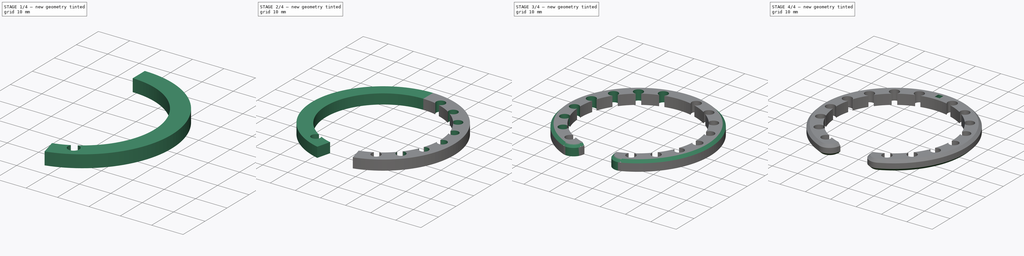
[diagram: build sequence overview — one tinted view per stage of 4, left to right]
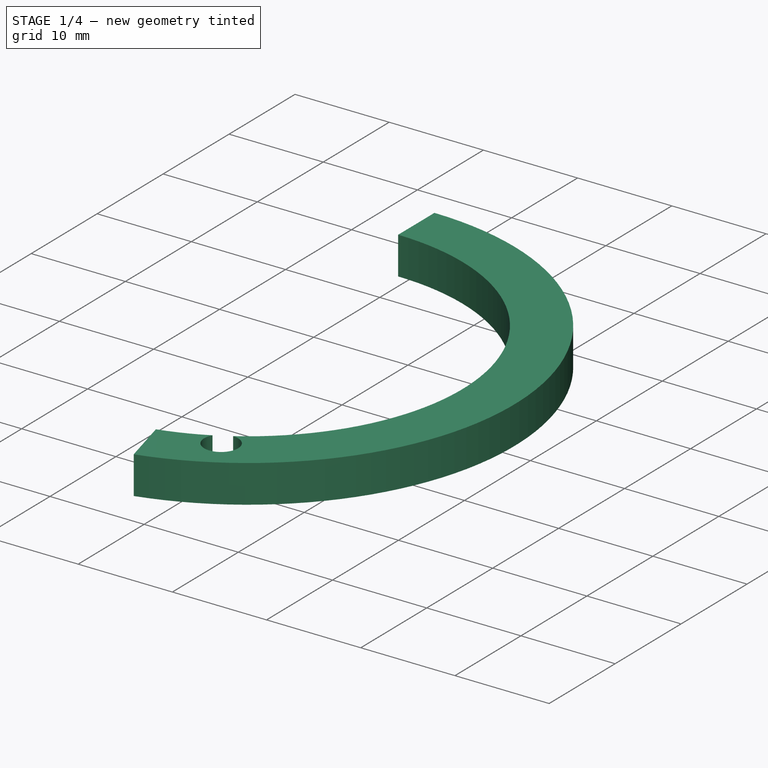
[diagram: stage 1 of 4 — iso view after this stage's code; geometry added in this stage tinted green]
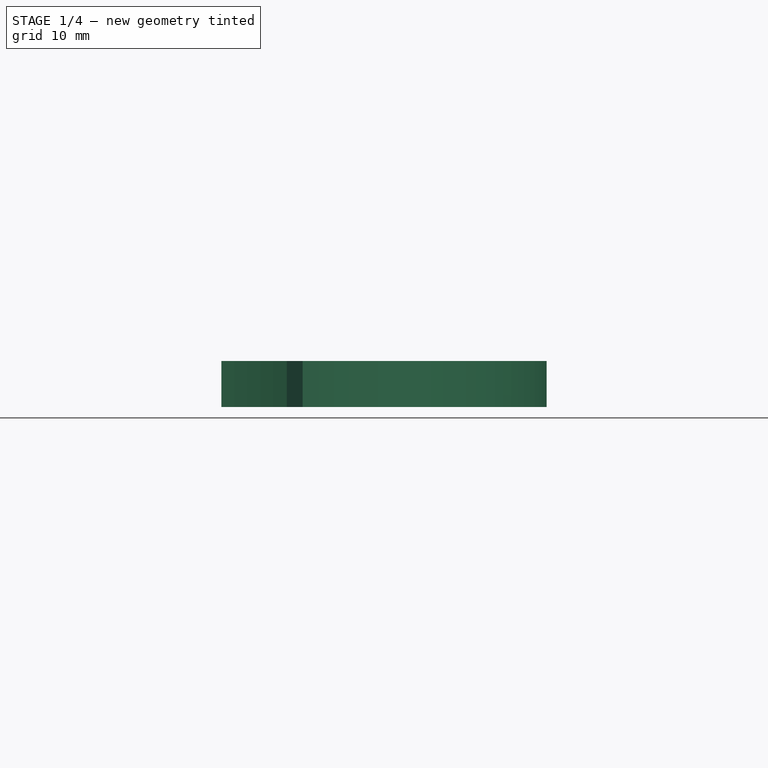
[diagram: stage 1 of 4 — front view after this stage's code; geometry added in this stage tinted green]
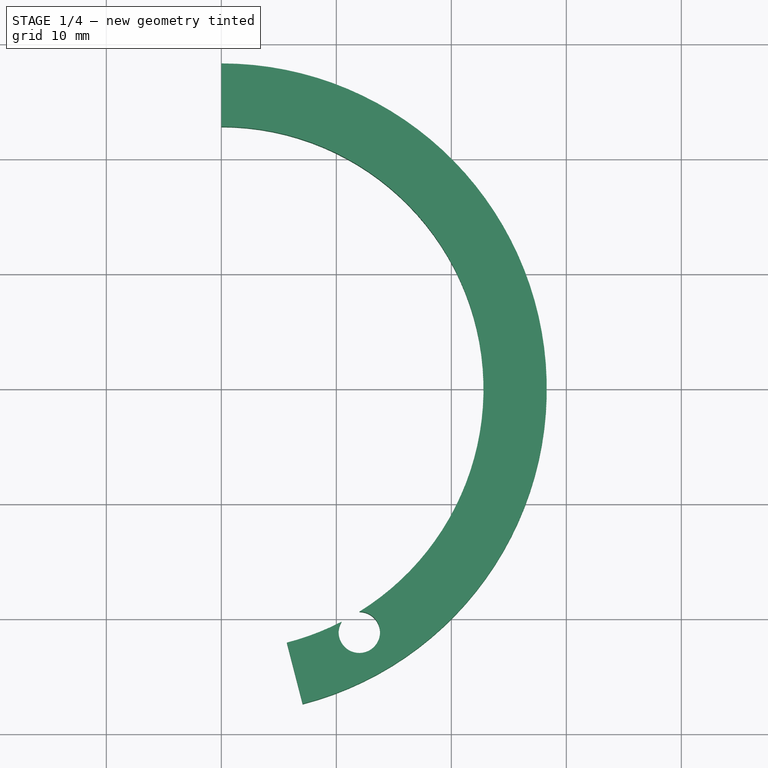
[diagram: stage 1 of 4 — top view after this stage's code; geometry added in this stage tinted green]
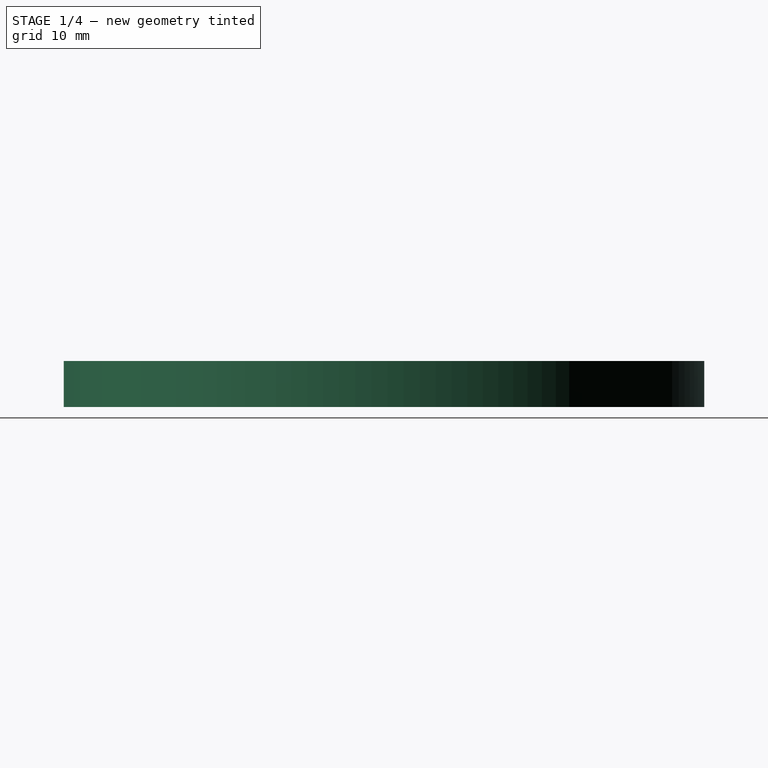
[diagram: stage 1 of 4 — right view after this stage's code; geometry added in this stage tinted green]
FCSTD DOCUMENT  (FreeCAD 0.17R13541 (Git))
Label: BigClip1
License: All rights reserved
LicenseURL: http://en.wikipedia.org/wiki/All_rights_reserved
objects: Sketcher::SketchObject×4, PartDesign::Pocket×3, PartDesign::PolarPattern×2, PartDesign::MultiTransform×2, PartDesign::Chamfer×2, Spreadsheet::Sheet×1, PartDesign::Pad×1, PartDesign::Mirrored×1, PartDesign::Fillet×1, PartDesign::Body×1
note: 21 computed .brp shape members not serialized (recipe doc carries the construction recipe); baked Part::Feature solids carry a one-line shape summary decoded from their .brp

FEATURE [Sketcher::SketchObject] Sketch
  MapMode = 5
  Support = -> [XY_Plane]
  expr: Constraints[2] = P.InnerRadius / 4
  expr: Constraints[10] = P.Thick
  expr: Constraints[1] = P.InnerRadius
  sketch-geometry (4):
    g0: ArcOfCircle CenterX=0 CenterY=0 CenterZ=0 NormalX=0 NormalY=0 NormalZ=1 AngleXU=0 Radius=22.8 StartAngle=4.96507 EndAngle=7.85398
    g1: ArcOfCircle CenterX=0 CenterY=0 CenterZ=0 NormalX=0 NormalY=0 NormalZ=1 AngleXU=0 Radius=28.3 StartAngle=4.96507 EndAngle=7.85398
    g2: LineSegment StartX=0 StartY=22.8 StartZ=0 EndX=0 EndY=28.3 EndZ=0
    g3: LineSegment StartX=5.7 StartY=-22.076 StartZ=0 EndX=7.075 EndY=-27.4014 EndZ=0
  constraints (12):
    c: Coincident(g0,g-1)
    c: Radius(g0) = 22.8
    c: DistanceX(g-1,g0) = 5.7
    c: Coincident(g1,g-1)
    c: Coincident(g2,g0)
    c: Coincident(g2,g1)
    c: Coincident(g3,g0)
    c: Coincident(g3,g1)
    c: Perpendicular(g0,g2)
    c: Perpendicular(g0,g3)
    c: Distance(g2) = 5.5
    c: PointOnObject(g1,g-2)
FEATURE [Spreadsheet::Sheet] Spreadsheet  label="P"
  cells = A1=Inner radius; B1(InnerRadius)==22.800000000000001mm; A2=Thick; B2(Thick)==5.5mm; A3=Wide; B3(Wide)==4mm; A4=Fiber radius; B4(FiberRadius)==1.8mm
FEATURE [PartDesign::Pad] Pad
  Length = 4
  Length2 = 100
  Profile = -> Sketch
  Type = 0
  expr: Length = P.Wide
FEATURE [Sketcher::SketchObject] Sketch001
  MapMode = 5
  Support = -> [XY_Plane]
  expr: Constraints[6] = P.FiberRadius
  expr: Constraints[3] = P.InnerRadius
  expr: Constraints[2] = P.InnerRadius
  sketch-geometry (3):
    g0: LineSegment StartX=0 StartY=0 StartZ=0 EndX=10.4485 EndY=-20.265 EndZ=0
    g1: LineSegment StartX=12.0145 StartY=-19.3776 StartZ=0 EndX=0 EndY=0 EndZ=0
    g2: ArcOfCircle CenterX=12 CenterY=-21.1775 CenterZ=0 NormalX=0 NormalY=0 NormalZ=1 AngleXU=0 Radius=1.8 StartAngle=2.60992 EndAngle=7.84591
  constraints (9):
    c: Coincident(g1,g-1)
    c: Coincident(g0,g-1)
    c: Distance(g0) = 22.8
    c: Distance(g1) = 22.8
    c: Coincident(g2,g1)
    c: Coincident(g2,g0)
    c: Radius(g2) = 1.8
    c: Distance(g1,g0) = 1.8
    c: DistanceX(g-1,g2) = 12
FEATURE [PartDesign::Pocket] Pocket
  BaseFeature = -> Pad
  Length = 5
  Length2 = 100
  Profile = -> Sketch001
  Reversed = true
  Type = 1
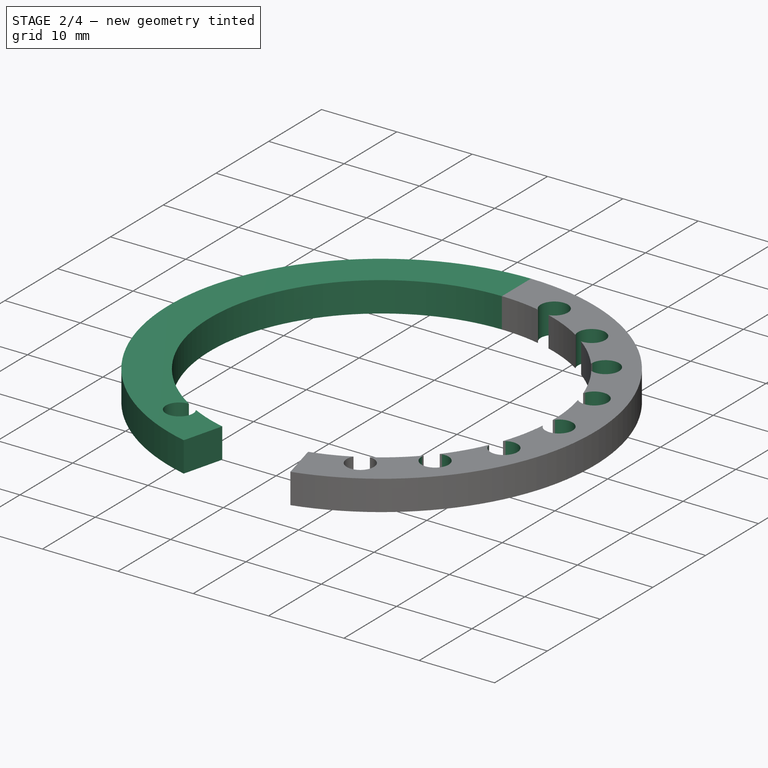
[diagram: stage 2 of 4 — iso view after this stage's code; geometry added in this stage tinted green]
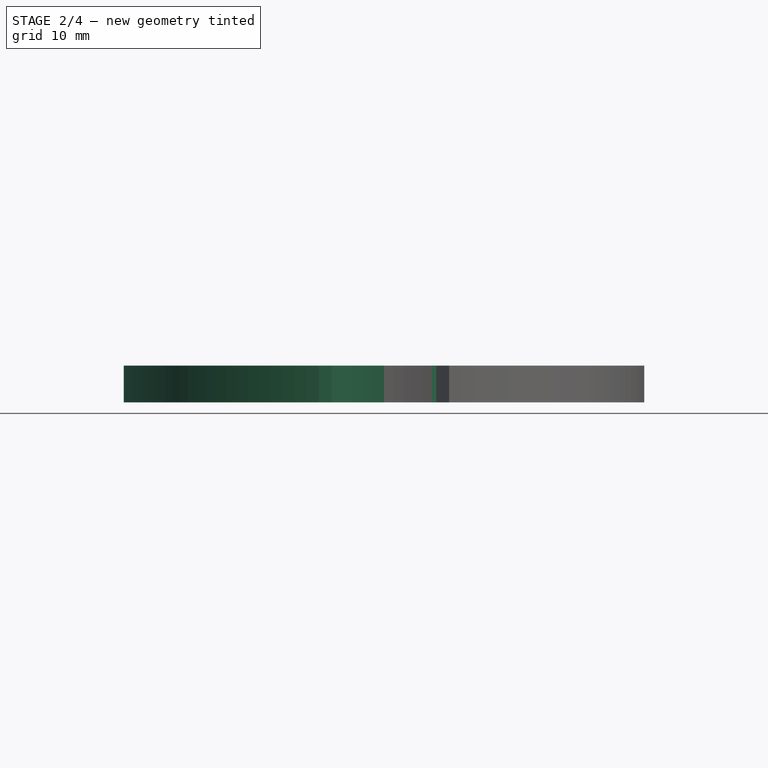
[diagram: stage 2 of 4 — front view after this stage's code; geometry added in this stage tinted green]
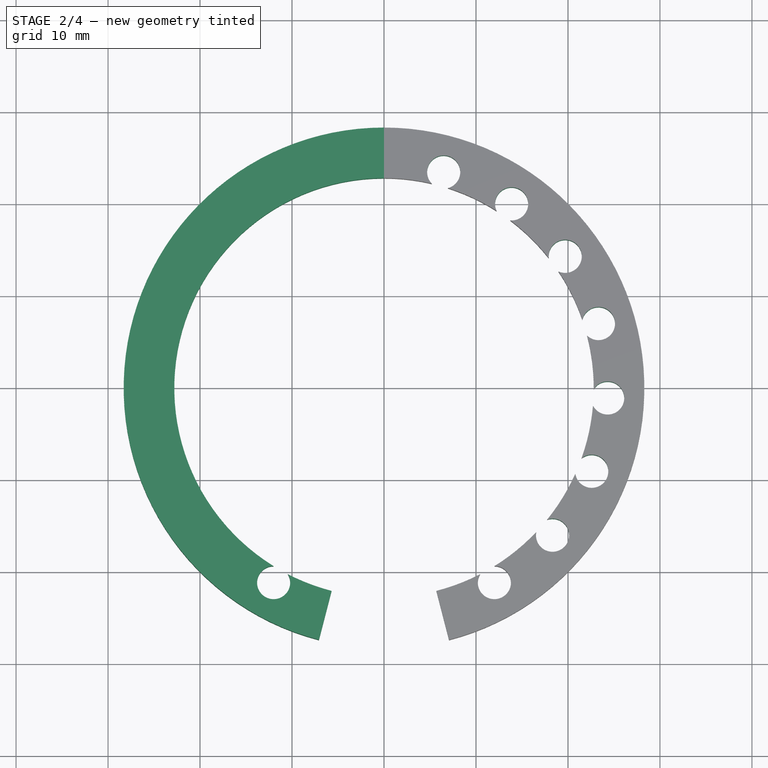
[diagram: stage 2 of 4 — top view after this stage's code; geometry added in this stage tinted green]
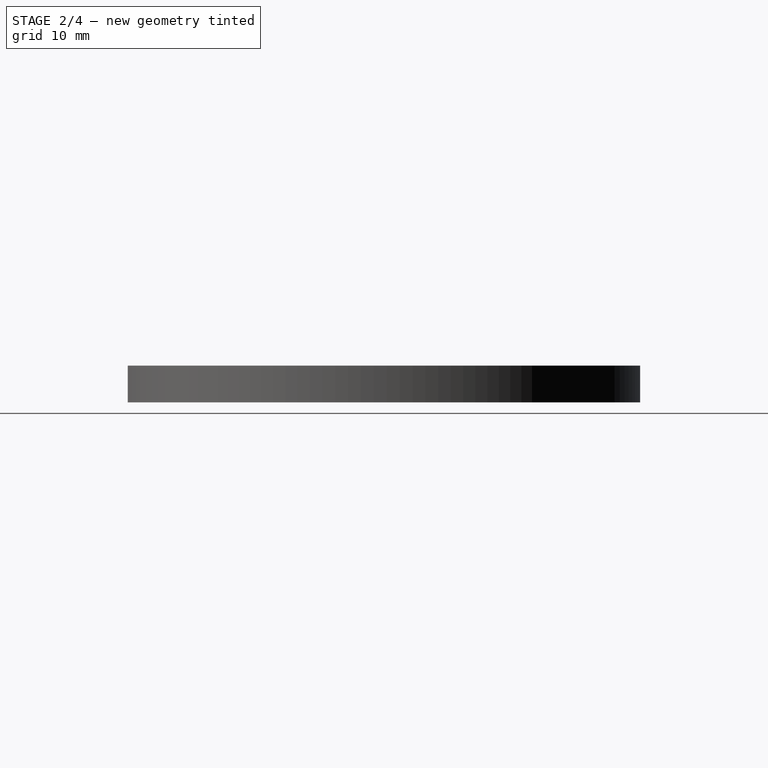
[diagram: stage 2 of 4 — right view after this stage's code; geometry added in this stage tinted green]
FEATURE [PartDesign::PolarPattern] PolarPattern
  Angle = 135
  Axis = -> Sketch001 [N_Axis]
  BaseFeature = -> Pocket
  Occurrences = 8
  Originals = -> [Pocket]
FEATURE [PartDesign::Mirrored] Mirrored
  MirrorPlane = -> Sketch [V_Axis]
FEATURE [PartDesign::MultiTransform] MultiTransform
  BaseFeature = -> PolarPattern
  Originals = -> [Pad]
  Transformations = -> [Mirrored]
FEATURE [Sketcher::SketchObject] Sketch003
  MapMode = 5
  Support = -> [XY_Plane]
  expr: Constraints[6] = P.FiberRadius
  expr: Constraints[3] = P.InnerRadius
  expr: Constraints[2] = P.InnerRadius
  sketch-geometry (3):
    g0: LineSegment StartX=0 StartY=0 StartZ=0 EndX=-12.0145 EndY=-19.3776 EndZ=0
    g1: LineSegment StartX=-10.4485 StartY=-20.265 StartZ=0 EndX=0 EndY=0 EndZ=0
    g2: ArcOfCircle CenterX=-12 CenterY=-21.1775 CenterZ=0 NormalX=0 NormalY=0 NormalZ=1 AngleXU=0 Radius=1.8 StartAngle=1.57887 EndAngle=6.81486
  constraints (9):
    c: Coincident(g1,g-1)
    c: Coincident(g0,g-1)
    c: Distance(g0) = 22.8
    c: Distance(g1) = 22.8
    c: Coincident(g2,g1)
    c: Coincident(g2,g0)
    c: Radius(g2) = 1.8
    c: Distance(g1,g0) = 1.8
    c: DistanceX(g-1,g2) = -12
FEATURE [PartDesign::Pocket] Pocket001
  BaseFeature = -> MultiTransform
  Length = 5
  Length2 = 100
  Profile = -> Sketch003
  Reversed = true
  Type = 1
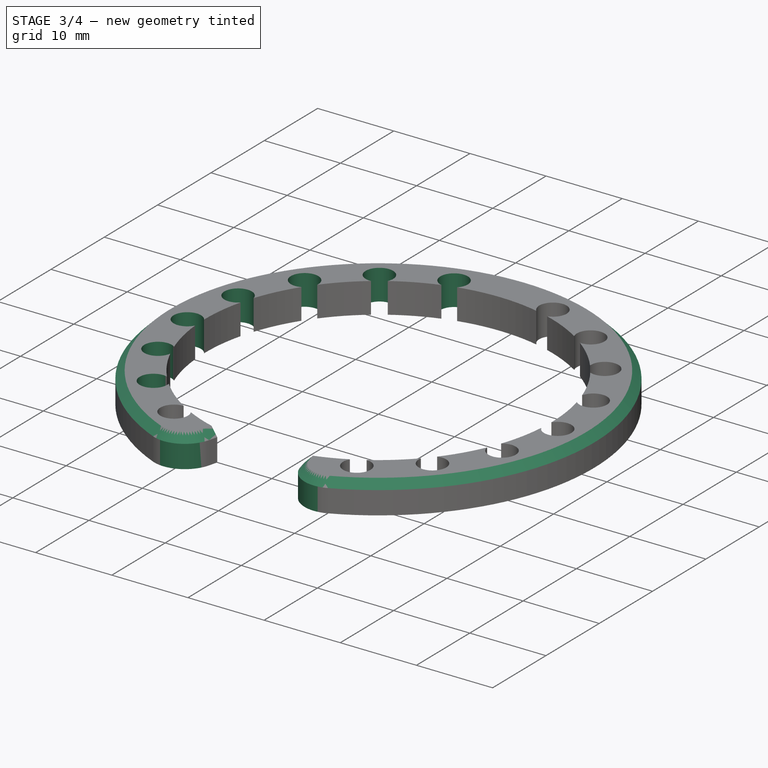
[diagram: stage 3 of 4 — iso view after this stage's code; geometry added in this stage tinted green]
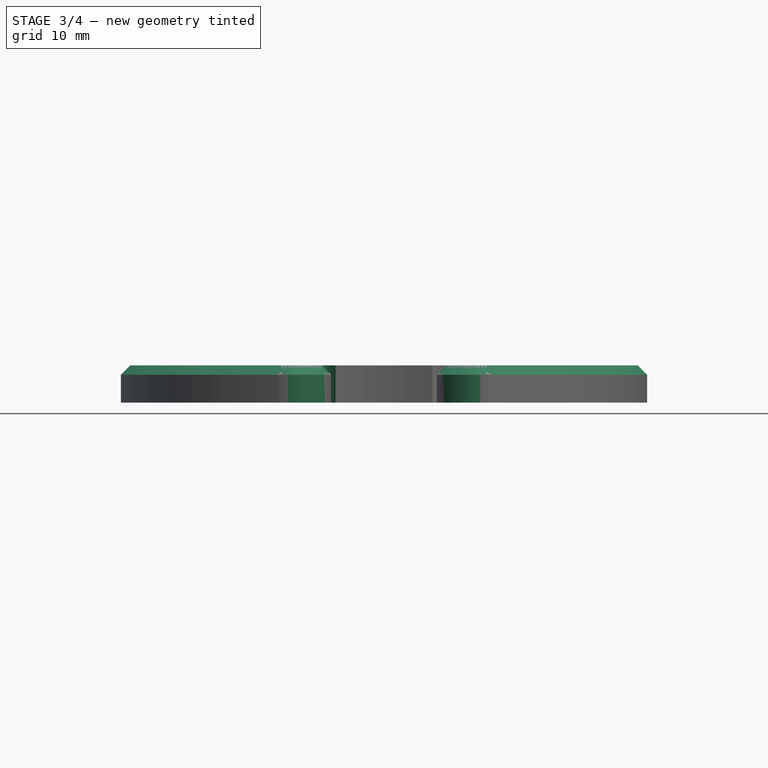
[diagram: stage 3 of 4 — front view after this stage's code; geometry added in this stage tinted green]
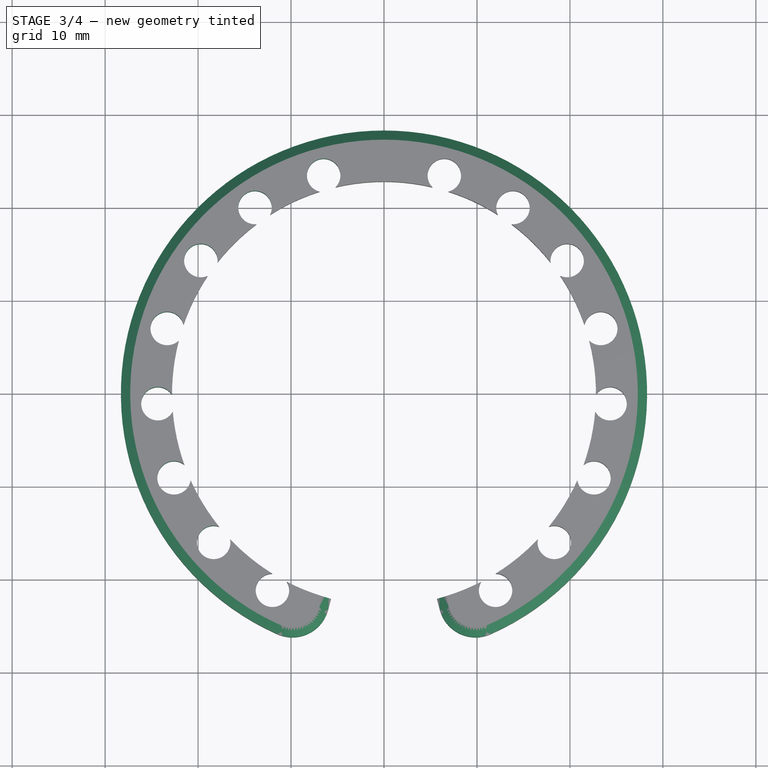
[diagram: stage 3 of 4 — top view after this stage's code; geometry added in this stage tinted green]
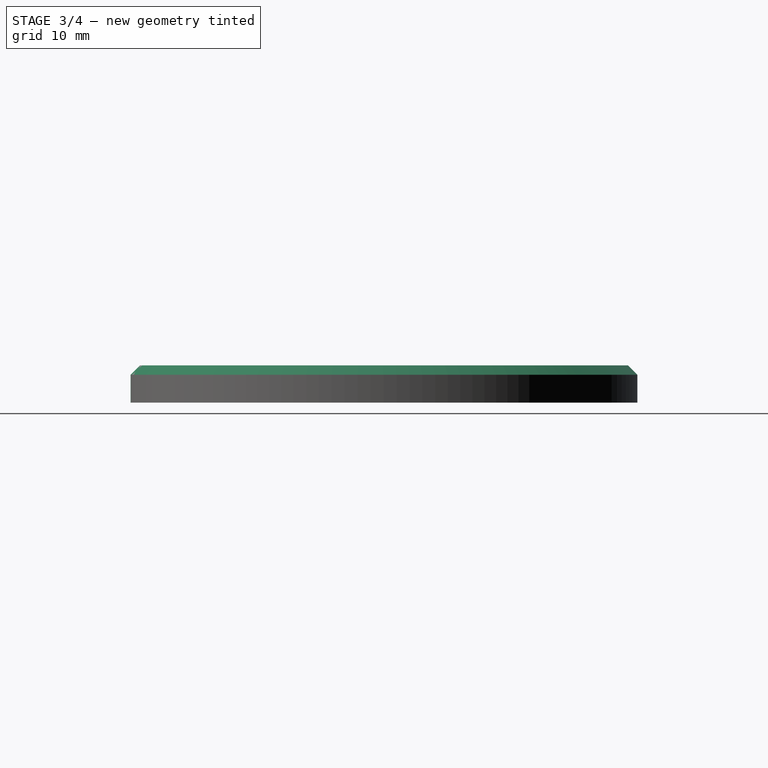
[diagram: stage 3 of 4 — right view after this stage's code; geometry added in this stage tinted green]
FEATURE [PartDesign::PolarPattern] PolarPattern001
  Angle = 135
  Axis = -> Sketch003 [N_Axis]
  Occurrences = 8
  Reversed = true
FEATURE [PartDesign::MultiTransform] MultiTransform001
  BaseFeature = -> Pocket001
  Originals = -> [Pocket001]
  Transformations = -> [PolarPattern001]
FEATURE [PartDesign::Fillet] Fillet
  Base = -> MultiTransform001 [Edge44,Edge99]
  BaseFeature = -> MultiTransform001
  Radius = 4
FEATURE [PartDesign::Chamfer] Chamfer
  Base = -> Fillet [Edge26,Edge30,Edge85,Edge89,Edge88,Edge24]
  BaseFeature = -> Fillet
  Size = 1
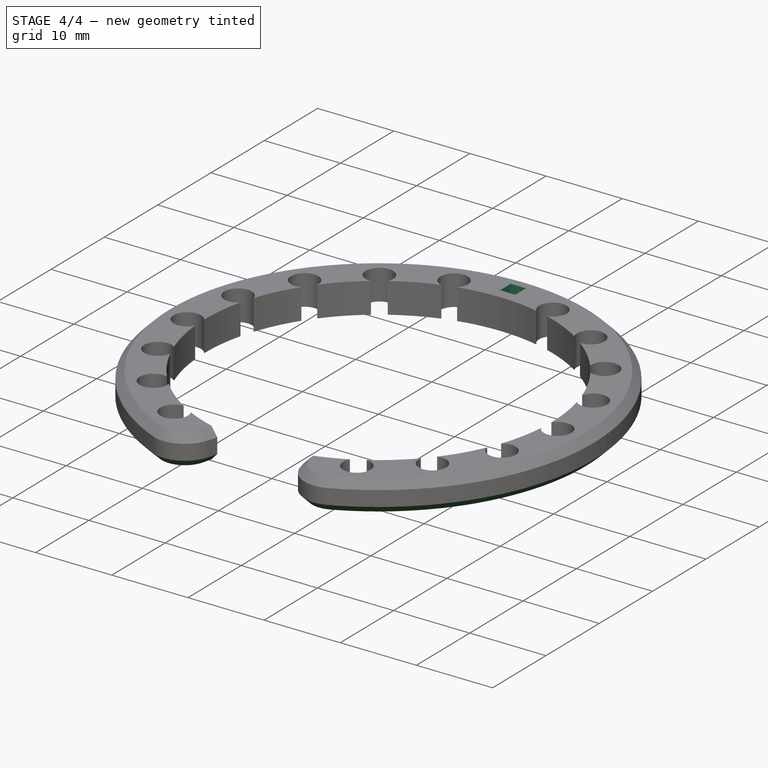
[diagram: stage 4 of 4 — iso view after this stage's code; geometry added in this stage tinted green]
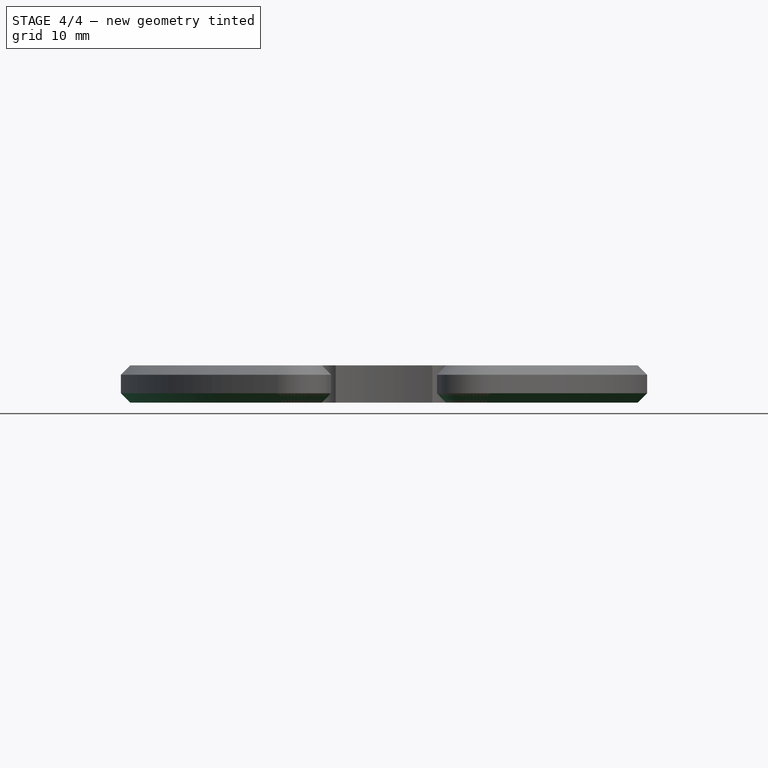
[diagram: stage 4 of 4 — front view after this stage's code; geometry added in this stage tinted green]
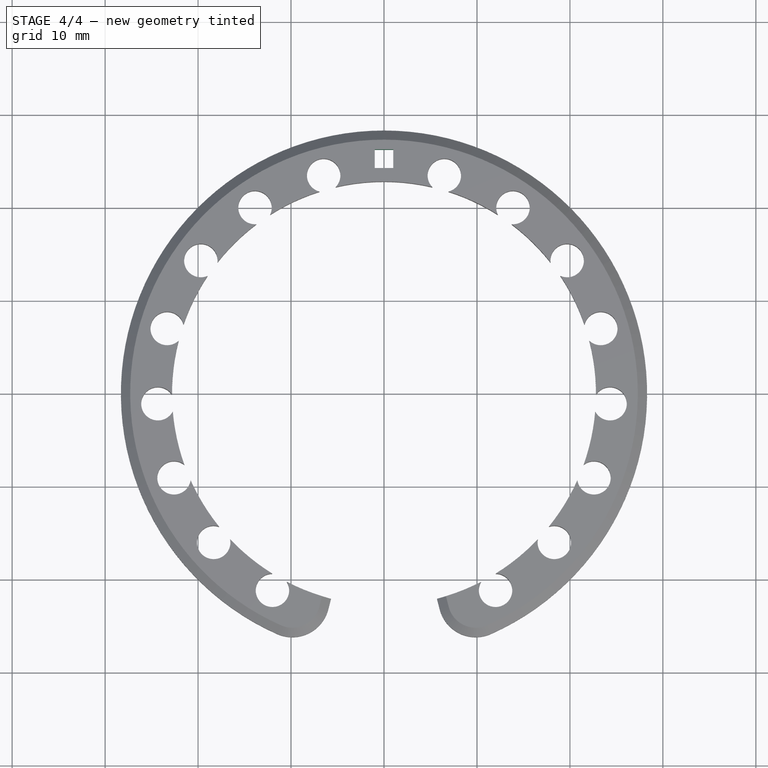
[diagram: stage 4 of 4 — top view after this stage's code; geometry added in this stage tinted green]
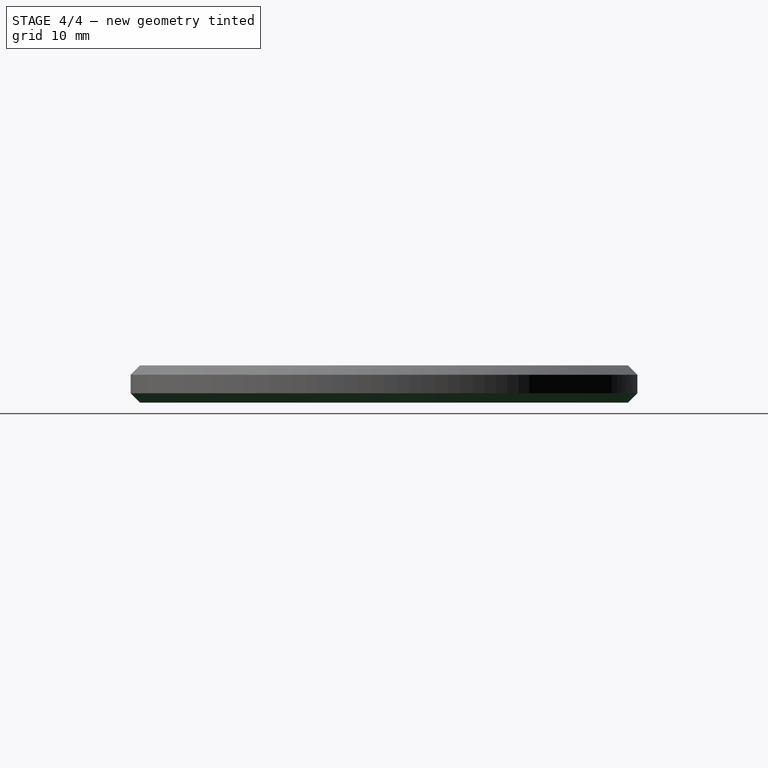
[diagram: stage 4 of 4 — right view after this stage's code; geometry added in this stage tinted green]
FEATURE [PartDesign::Chamfer] Chamfer001
  Base = -> Chamfer [Edge56,Edge55,Edge58,Edge12,Edge6,Edge3]
  BaseFeature = -> Chamfer
  Size = 1
FEATURE [Sketcher::SketchObject] Sketch004
  MapMode = 5
  Support = -> [XY_Plane]
  sketch-geometry (4):
    g0: LineSegment StartX=-1 StartY=24.25 StartZ=0 EndX=1 EndY=24.25 EndZ=0
    g1: LineSegment StartX=1 StartY=24.25 StartZ=0 EndX=1 EndY=26.25 EndZ=0
    g2: LineSegment StartX=1 StartY=26.25 StartZ=0 EndX=-1 EndY=26.25 EndZ=0
    g3: LineSegment StartX=-1 StartY=26.25 StartZ=0 EndX=-1 EndY=24.25 EndZ=0
  constraints (14):
    c: Coincident(g0,g1)
    c: Coincident(g1,g2)
    c: Coincident(g2,g3)
    c: Coincident(g3,g0)
    c: Horizontal(g0)
    c: Horizontal(g2)
    c: Vertical(g1)
    c: Vertical(g3)
    c: Equal(g0,g1)
    c: Equal(g1,g2)
    c: Equal(g2,g3)
    c: Symmetric(g1,g0,g-2)
    c: DistanceX(g2,g2) = 2
    c: DistanceY(g-1,g0) = 24.25
FEATURE [PartDesign::Pocket] Pocket002
  BaseFeature = -> Chamfer001
  Length = 5
  Length2 = 100
  Profile = -> Sketch004
  Reversed = true
  Type = 1
FEATURE [PartDesign::Body] Body
  Group = -> [Sketch,Pad,Sketch001,Pocket,PolarPattern,MultiTransform,Mirrored,Sketch003,Pocket001,MultiTransform001,PolarPattern001,Fillet,Chamfer,Chamfer001,Sketch004,Pocket002]
  Origin = -> Origin
  Tip = -> Pocket002
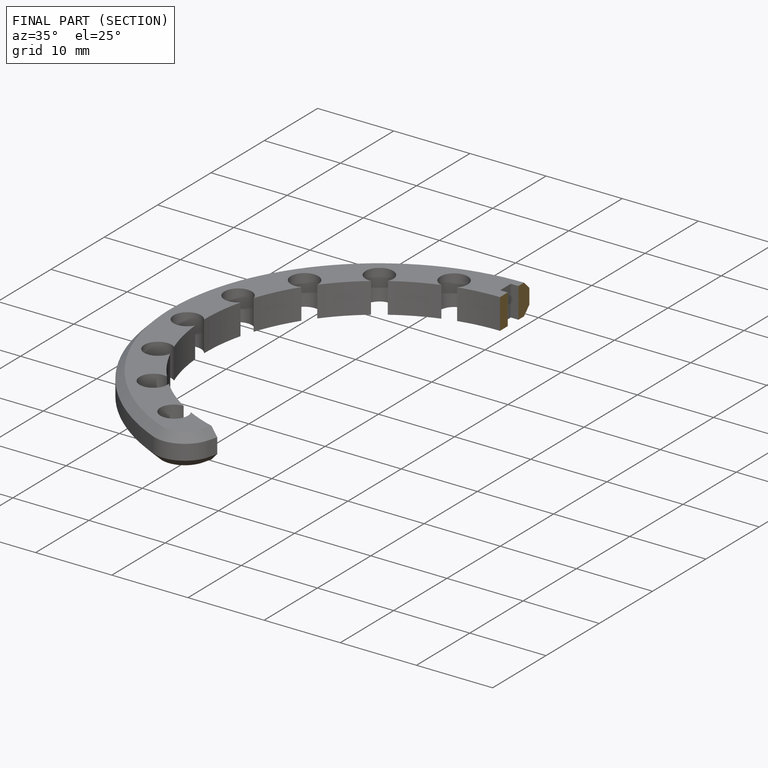
[diagram: finished part — half-section view (interior)]
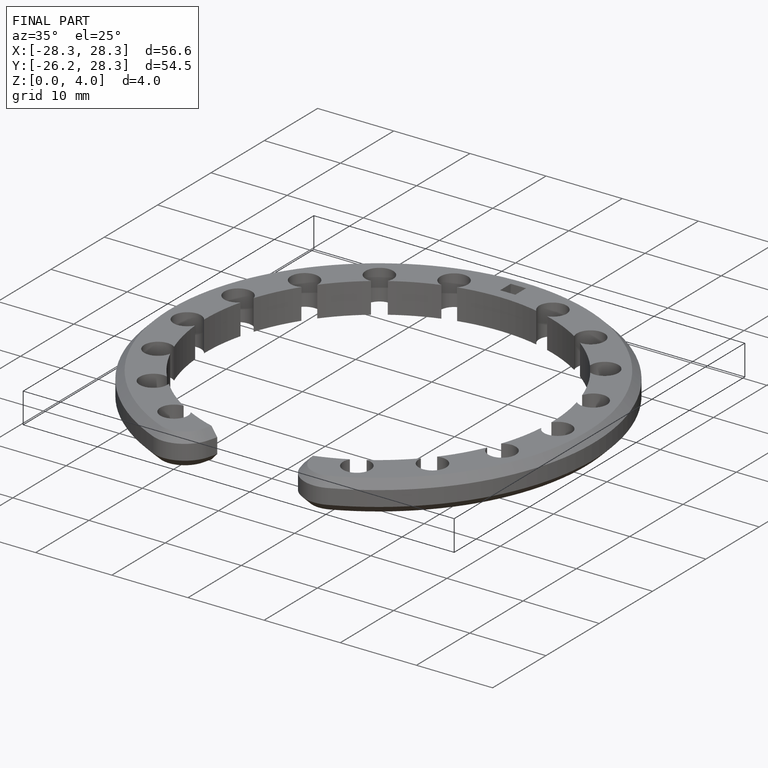
[diagram: finished part — iso view with bounding-box wireframe]
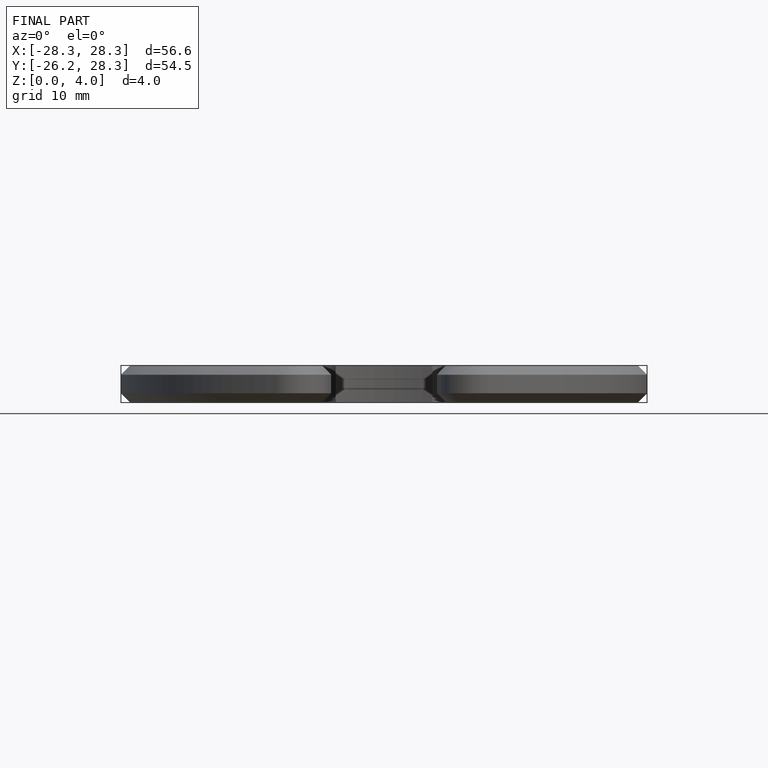
[diagram: finished part — front view with bounding-box wireframe]
